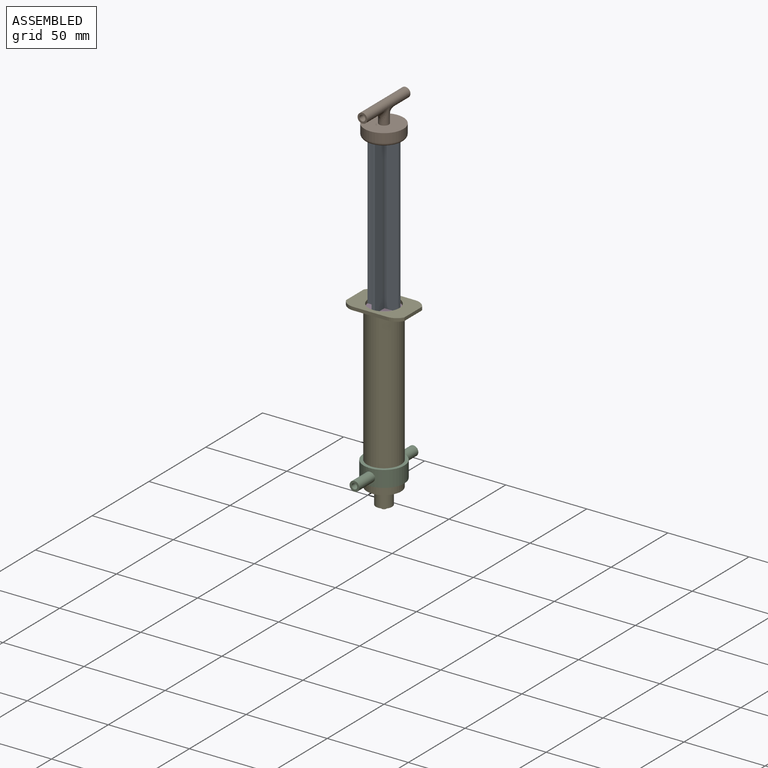
[diagram: assembled view]
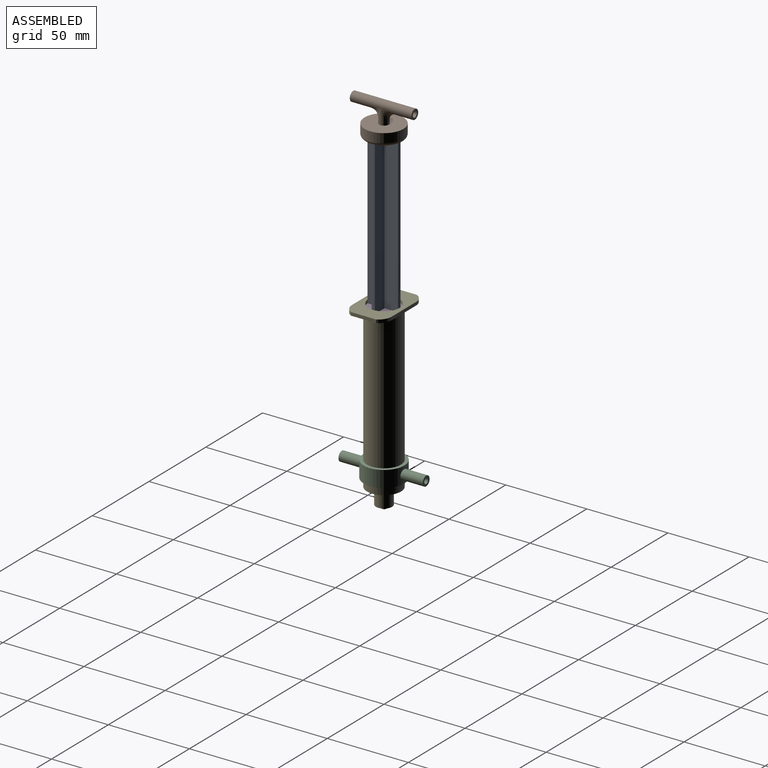
[diagram: assembled view, second angle]
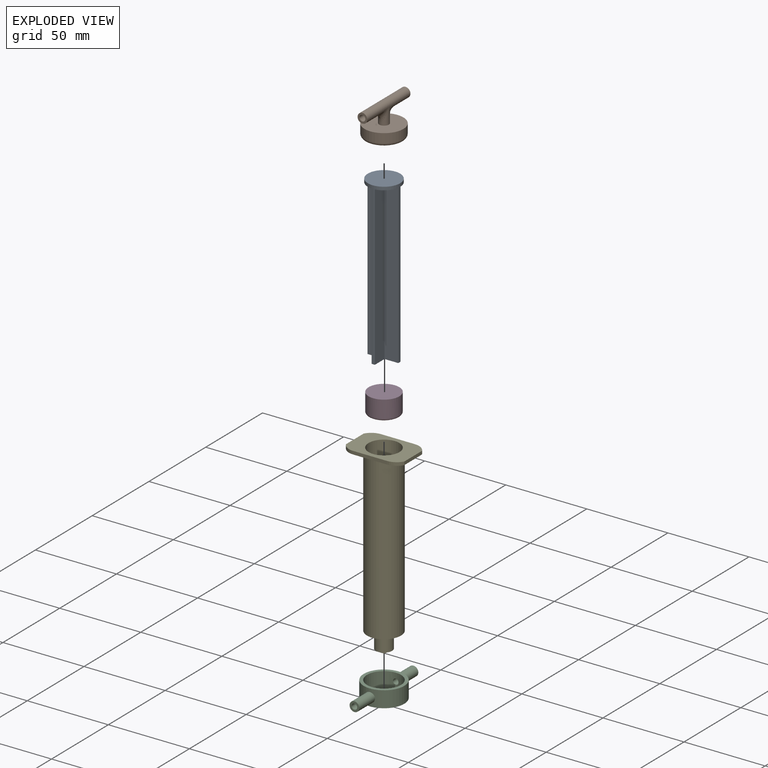
[diagram: exploded view]
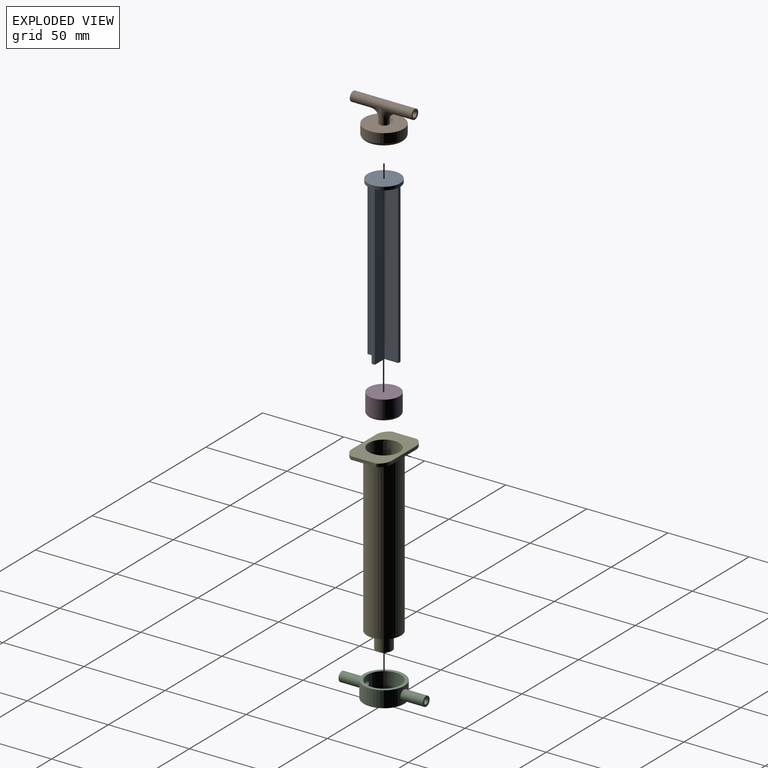
[diagram: exploded view, second angle]
ASSEMBLY  parts=5 mates=4
PART A: 16 faces, bbox 20x20x100 mm
  f0: plane 98x8.45mm, normal (1,0,0), area 827.8mm2, adj f1,f11,f12,f14
  f1: cylinder r=9.5mm len=98mm, axis (0,0,-1), area 196.4mm2, adj f0,f2,f12,f14
  f2: plane 98x8.45mm, normal (-1,0,0), area 827.8mm2, adj f1,f3,f12,f14
  f3: plane 98x8.45mm, normal (0,1,0), area 827.8mm2, adj f2,f4,f12,f14
  f4: cylinder r=9.5mm len=98mm, axis (0,0,-1), area 196.4mm2, adj f3,f5,f12,f14
  f5: plane 98x8.45mm, normal (0,-1,0), area 827.8mm2, adj f4,f6,f12,f14
  f6: plane 98x8.45mm, normal (-1,0,0), area 827.8mm2, adj f5,f7,f12,f14
  f7: cylinder r=9.5mm len=98mm, axis (0,0,-1), area 196.4mm2, adj f6,f8,f12,f14
  f8: plane 98x8.45mm, normal (1,0,0), area 827.8mm2, adj f7,f9,f12,f14
  f9: plane 98x8.45mm, normal (0,-1,0), area 827.8mm2, adj f8,f10,f12,f14
  f10: cylinder r=9.5mm len=98mm, axis (0,0,-1), area 196.4mm2, adj f9,f11,f12,f14
  f11: plane 98x8.45mm, normal (0,1,0), area 827.8mm2, adj f0,f10,f12,f14
  f12: plane 19x19mm, normal (0,0,-1), area 71.9mm2, adj f0,f1,f2,f3,f4,f5,f6,f7
  f13: cylinder r=10mm len=20mm, axis (0,0,1), area 125.7mm2, adj f14,f15
  f14: plane 20x20mm, normal (0,0,-1), area 242.3mm2, adj f0,f1,f2,f3,f4,f5,f6,f7
  f15: plane 20x20mm, normal (0,0,1), area 314.2mm2, adj f13
PART B: 12 faces, bbox 26x38x20.6 mm
  f0: cylinder r=3mm len=10mm, axis (0,0,-1), area 92.5mm2, adj f2,f9,f10
  f1: cylinder r=12mm len=24mm, axis (0,0,-1), area 419.5mm2, adj f2,f5
  f2: plane 24x24mm, normal (0,0,1), area 424.1mm2, adj f0,f1
  f3: cylinder r=10.5mm len=21mm, axis (0,0,-1), area 329.9mm2, adj f4,f5
  f4: plane 21x21mm, normal (0,0,-1), area 346.4mm2, adj f3
  f5: torus R=10mm, axis (0,0,-1), area 190mm2, adj f1,f3
  f6: cylinder r=3mm len=38mm, axis (0,1,0), area 620.3mm2, adj f7,f8,f9,f10
  f7: plane 6x6mm, normal (0,-1,0), area 18.1mm2, adj f6,f11
  f8: plane 6x6mm, normal (0,1,0), area 18.1mm2, adj f6,f11
  f9: bspline ~8x8mm, area 59.8mm2, adj f0,f6
  f10: bspline ~8x8mm, area 59.8mm2, adj f0,f6
  f11: cylinder r=1.8mm len=38mm, axis (0,-1,0), area 429.8mm2, adj f7,f8
PART C: 10 faces, bbox 25x52x10 mm
  f0: cylinder r=1.7mm len=15.64mm, axis (0,-1,0), area 166.3mm2, adj f2,f6
  f1: cylinder r=1.7mm len=15.64mm, axis (0,-1,0), area 166.3mm2, adj f2,f8
  f2: cylinder r=10.5mm len=21mm, axis (0,0,-1), area 641.6mm2, adj f0,f1,f4,f5
  f3: cylinder r=12.5mm len=25mm, axis (0,0,-1), area 728.3mm2, adj f4,f5,f7,f9
  f4: plane 25x25mm, normal (0,0,1), area 144.5mm2, adj f2,f3
  f5: plane 25x25mm, normal (0,0,-1), area 144.5mm2, adj f2,f3
  f6: plane 6x6mm, normal (0,1,0), area 19.2mm2, adj f0,f7
  f7: cylinder r=3mm len=13.87mm, axis (0,1,0), area 257.9mm2, adj f3,f6
  f8: plane 6x6mm, normal (0,-1,0), area 19.2mm2, adj f1,f9
  f9: cylinder r=3mm len=13.87mm, axis (0,1,0), area 257.9mm2, adj f3,f8
PART D: 4 faces, bbox 19x19x12 mm
  f0: cylinder r=9.5mm len=19mm, axis (0,0,1), area 626.7mm2, adj f2,f3
  f1: plane 16.01x16.01mm, normal (0,0,-1), area 201.1mm2, adj f3
  f2: plane 19x19mm, normal (0,0,1), area 283.5mm2, adj f0
  f3: bspline ~19x19mm, area 137.5mm2, adj f0,f1
PART E: 21 faces, bbox 36x24.5x114 mm
  f0: plane 3x3mm, normal (0,0,-1), area 3.9mm2, adj f1,f10
  f1: cylinder r=1.5mm len=10mm, axis (0,0,1), area 94.2mm2, adj f0,f2
  f2: plane 7.6x7.6mm, normal (0,0,-1), area 38.3mm2, adj f1,f3
  f3: cylinder r=3.8mm len=8mm, axis (0,0,1), area 191mm2, adj f2,f4
  f4: plane 10x10mm, normal (0,0,-1), area 33.2mm2, adj f3,f5
  f5: cylinder r=5mm len=10mm, axis (0,0,1), area 314.2mm2, adj f4,f6
  f6: plane 21x21mm, normal (0,0,-1), area 267.8mm2, adj f5,f7
  f7: cylinder r=10.5mm len=100mm, axis (0,0,1), area 6597.3mm2, adj f6,f20
  f8: cylinder r=9.5mm len=101mm, axis (0,0,1), area 6028.7mm2, adj f9,f19
  f9: plane 19x19mm, normal (0,0,1), area 280.4mm2, adj f8,f10
  f10: cylinder r=1mm len=13mm, axis (0,0,-1), area 81.7mm2, adj f0,f9
  f11: cylinder r=8.5mm len=7.5mm, axis (0,0,-1), area 18.4mm2, adj f12,f18,f19,f20
  f12: plane 21x2mm, normal (0,1,0), area 42mm2, adj f11,f13,f19,f20
  f13: cylinder r=8.5mm len=7.5mm, axis (0,0,-1), area 18.4mm2, adj f12,f14,f19,f20
  f14: plane 15.5x2mm, normal (-1,0,0), area 31mm2, adj f13,f15,f19,f20
  f15: cylinder r=8.5mm len=7.5mm, axis (0,0,-1), area 18.4mm2, adj f14,f16,f19,f20
  f16: plane 21x2mm, normal (0,-1,0), area 42mm2, adj f15,f17,f19,f20
  f17: cylinder r=8.5mm len=7.5mm, axis (0,0,-1), area 18.4mm2, adj f16,f18,f19,f20
  f18: plane 15.5x2mm, normal (1,0,0), area 31mm2, adj f11,f17,f19,f20
  f19: plane 36x24.5mm, normal (0,0,1), area 559.7mm2, adj f8,f11,f12,f13,f14,f15,f16,f17
  f20: plane 36x24.5mm, normal (0,0,-1), area 496.8mm2, adj f7,f11,f12,f13,f14,f15,f16,f17
PLACE A t=(0,0,-2)mm
PLACE B t=(0,0,195)mm
PLACE C t=(50.05,0,5)mm
PLACE D t=(0,0,-2)mm
PLACE E at identity fixed
MATE slider D.f0 <-> E.f1  axis (0,0,-1) through (0,0,88)mm
MATE fastened B.f3 <-> A.f13  axis (0,0,-1) through (0,0,200)mm
MATE fastened A.f1 <-> D.f0  axis (0,0,-1) through (0,0,100)mm
MATE fastened C.f2 <-> E.f1  axis (0,0,-1) through (0,0,5)mm
